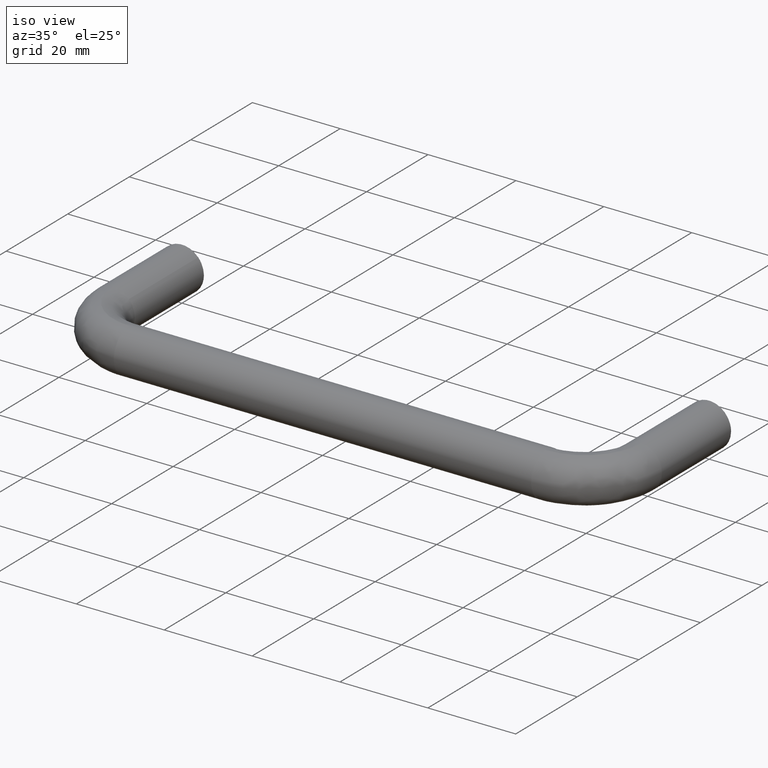
[diagram: clean part render]
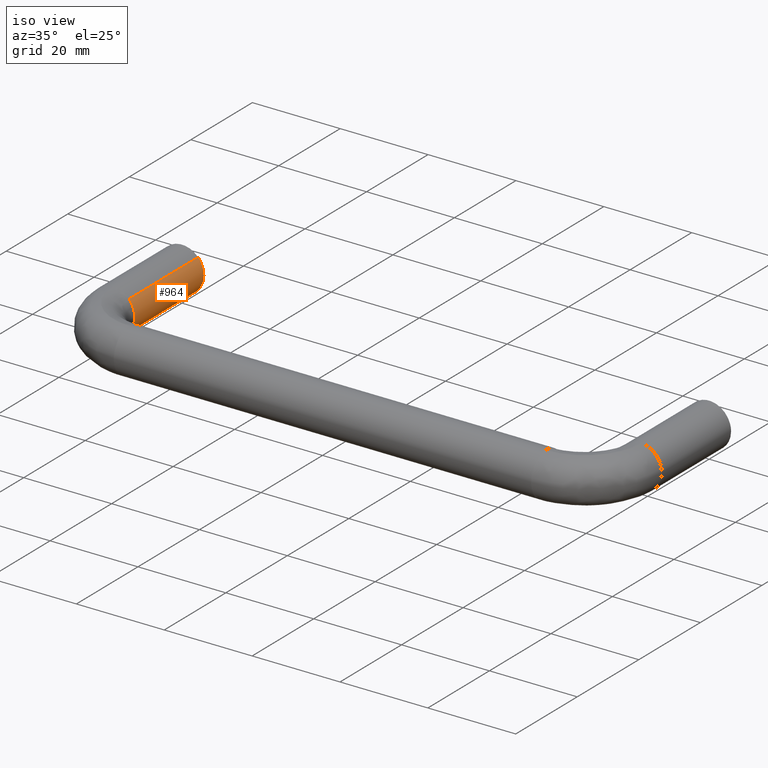
[diagram: same view with one face highlighted and labeled with its STEP entity id]
A machine part, iso view. The second image highlights one B-rep face of the part: STEP entity #964.
In plain terms, the highlighted face is a freeform B-spline surface patch.
Its self-contained STEP definition (entity closure, byte-faithful):
#870=CARTESIAN_POINT('',(2.421098661271897,0.562500000030747,-4.374732137215650));
#871=CARTESIAN_POINT('',(2.940378048686832,0.562500000030747,-4.087348455138017));
#872=CARTESIAN_POINT('',(3.377951038078300,0.562500000030747,-3.686386684050619));
#873=CARTESIAN_POINT('',(7.064337722128919,0.562500000030748,-0.308435645972318));
#874=CARTESIAN_POINT('',(3.686386684050619,0.562500000030747,3.377951038078300));
#875=CARTESIAN_POINT('',(2.421098661271898,-23.076562501261346,-4.374732137215650));
#876=CARTESIAN_POINT('',(2.940378048686835,-23.076562501261343,-4.087348455138017));
#877=CARTESIAN_POINT('',(3.377951038078304,-23.076562501261339,-3.686386684050619));
#878=CARTESIAN_POINT('',(7.064337722128923,-23.076562501261339,-0.308435645972318));
#879=CARTESIAN_POINT('',(3.686386684050622,-23.076562501261339,3.377951038078300));
#887=(BOUNDED_SURFACE()B_SPLINE_SURFACE(2,1,((#870,#875),(#871,#876),(#872,#877),(#873,#878),(#874,#879)),.UNSPECIFIED.,.F.,.F.,.U.)B_SPLINE_SURFACE_WITH_KNOTS((3,2,3),(2,2),(0.0,1.325483399593906,9.609754647055803),(0.0,23.639062501292099),.UNSPECIFIED.)GEOMETRIC_REPRESENTATION_ITEM()RATIONAL_B_SPLINE_SURFACE(((0.921270302782944,0.921270302782944),(0.953137084989848,0.953137084989848),(1.0,1.0),(0.707106781186548,0.707106781186548),(1.0,1.0)))REPRESENTATION_ITEM('')SURFACE());
#888=CARTESIAN_POINT('',(2.421098661299536,-22.500000000000000,-4.374732137200357));
#889=VERTEX_POINT('',#888);
#890=CARTESIAN_POINT('',(5.000000000000003,-22.500000000000000,0.0));
#891=VERTEX_POINT('',#890);
#892=CARTESIAN_POINT('',(2.421098661299535,-22.499999999999996,-4.374732137200357));
#893=CARTESIAN_POINT('',(5.000000000000003,-22.499999999999996,-2.947496278403269));
#894=CARTESIAN_POINT('',(5.000000000000003,-22.500000000000000,0.0));
#902=(BOUNDED_CURVE()B_SPLINE_CURVE(2,(#892,#893,#894),.UNSPECIFIED.,.F.,.U.)B_SPLINE_CURVE_WITH_KNOTS((3,3),(0.332484288972585,0.500000000000000),.UNSPECIFIED.)CURVE()GEOMETRIC_REPRESENTATION_ITEM()RATIONAL_B_SPLINE_CURVE((0.870495137451408,0.803743136781425,1.0))REPRESENTATION_ITEM(''));
#903=EDGE_CURVE('',#889,#891,#902,.T.);
#904=ORIENTED_EDGE('',*,*,#903,.F.);
#905=CARTESIAN_POINT('',(2.421098661298299,-6.025501E-017,-4.374732137201040));
#906=VERTEX_POINT('',#905);
#907=CARTESIAN_POINT('',(2.421098661298299,-6.025501E-017,-4.374732137201040));
#908=CARTESIAN_POINT('',(2.421098661299536,-22.500000000000000,-4.374732137200357));
#909=QUASI_UNIFORM_CURVE('',1,(#907,#908),.UNSPECIFIED.,.F.,.U.);
#910=EDGE_CURVE('',#906,#889,#909,.T.);
#911=ORIENTED_EDGE('',*,*,#910,.F.);
#912=CARTESIAN_POINT('',(5.0,0.0,0.0));
#913=VERTEX_POINT('',#912);
#914=CARTESIAN_POINT('',(2.421098661298299,-6.025501E-017,-4.374732137201040));
#915=CARTESIAN_POINT('',(5.0,0.0,-2.947496278405170));
#916=CARTESIAN_POINT('',(5.0,0.0,0.0));
#924=(BOUNDED_CURVE()B_SPLINE_CURVE(2,(#914,#915,#916),.UNSPECIFIED.,.F.,.U.)B_SPLINE_CURVE_WITH_KNOTS((3,3),(0.332484288972498,0.500000000000000),.UNSPECIFIED.)CURVE()GEOMETRIC_REPRESENTATION_ITEM()RATIONAL_B_SPLINE_CURVE((0.870495137451477,0.803743136781324,1.0))REPRESENTATION_ITEM(''));
#925=EDGE_CURVE('',#906,#913,#924,.T.);
#926=ORIENTED_EDGE('',*,*,#925,.T.);
#927=CARTESIAN_POINT('',(3.686388444170081,0.0,3.377949117242961));
#928=VERTEX_POINT('',#927);
#929=CARTESIAN_POINT('',(5.0,0.0,0.0));
#930=CARTESIAN_POINT('',(4.999999999999999,0.0,1.944392159615169));
#931=CARTESIAN_POINT('',(3.686388444170081,0.0,3.377949117242962));
#939=(BOUNDED_CURVE()B_SPLINE_CURVE(2,(#929,#930,#931),.UNSPECIFIED.,.F.,.U.)B_SPLINE_CURVE_WITH_KNOTS((3,3),(0.500000000000000,0.618415130424519),.UNSPECIFIED.)CURVE()GEOMETRIC_REPRESENTATION_ITEM()RATIONAL_B_SPLINE_CURVE((1.0,0.861268045174991,0.853959790547198))REPRESENTATION_ITEM(''));
#940=EDGE_CURVE('',#913,#928,#939,.T.);
#941=ORIENTED_EDGE('',*,*,#940,.T.);
#942=CARTESIAN_POINT('',(3.686388599247899,-22.500000000324619,3.377948947709638));
#943=VERTEX_POINT('',#942);
#944=CARTESIAN_POINT('',(3.686388444170081,0.0,3.377949117242961));
#945=CARTESIAN_POINT('',(3.686388599247899,-22.500000000324619,3.377948947709638));
#946=QUASI_UNIFORM_CURVE('',1,(#944,#945),.UNSPECIFIED.,.F.,.U.);
#947=EDGE_CURVE('',#928,#943,#946,.T.);
#948=ORIENTED_EDGE('',*,*,#947,.T.);
#949=CARTESIAN_POINT('',(5.000000000000003,-22.500000000000000,0.0));
#950=CARTESIAN_POINT('',(5.000000000000003,-22.500000000000004,1.944392027145290));
#951=CARTESIAN_POINT('',(3.686388599247899,-22.500000000324626,3.377948947709638));
#959=(BOUNDED_CURVE()B_SPLINE_CURVE(2,(#949,#950,#951),.UNSPECIFIED.,.F.,.U.)B_SPLINE_CURVE_WITH_KNOTS((3,3),(0.500000000000000,0.618415123476215),.UNSPECIFIED.)CURVE()GEOMETRIC_REPRESENTATION_ITEM()RATIONAL_B_SPLINE_CURVE((1.0,0.861268053315436,0.853959791404858))REPRESENTATION_ITEM(''));
#960=EDGE_CURVE('',#891,#943,#959,.T.);
#961=ORIENTED_EDGE('',*,*,#960,.F.);
#962=EDGE_LOOP('',(#904,#911,#926,#941,#948,#961));
#963=FACE_OUTER_BOUND('',#962,.T.);
#964=ADVANCED_FACE('',(#963),#887,.T.);